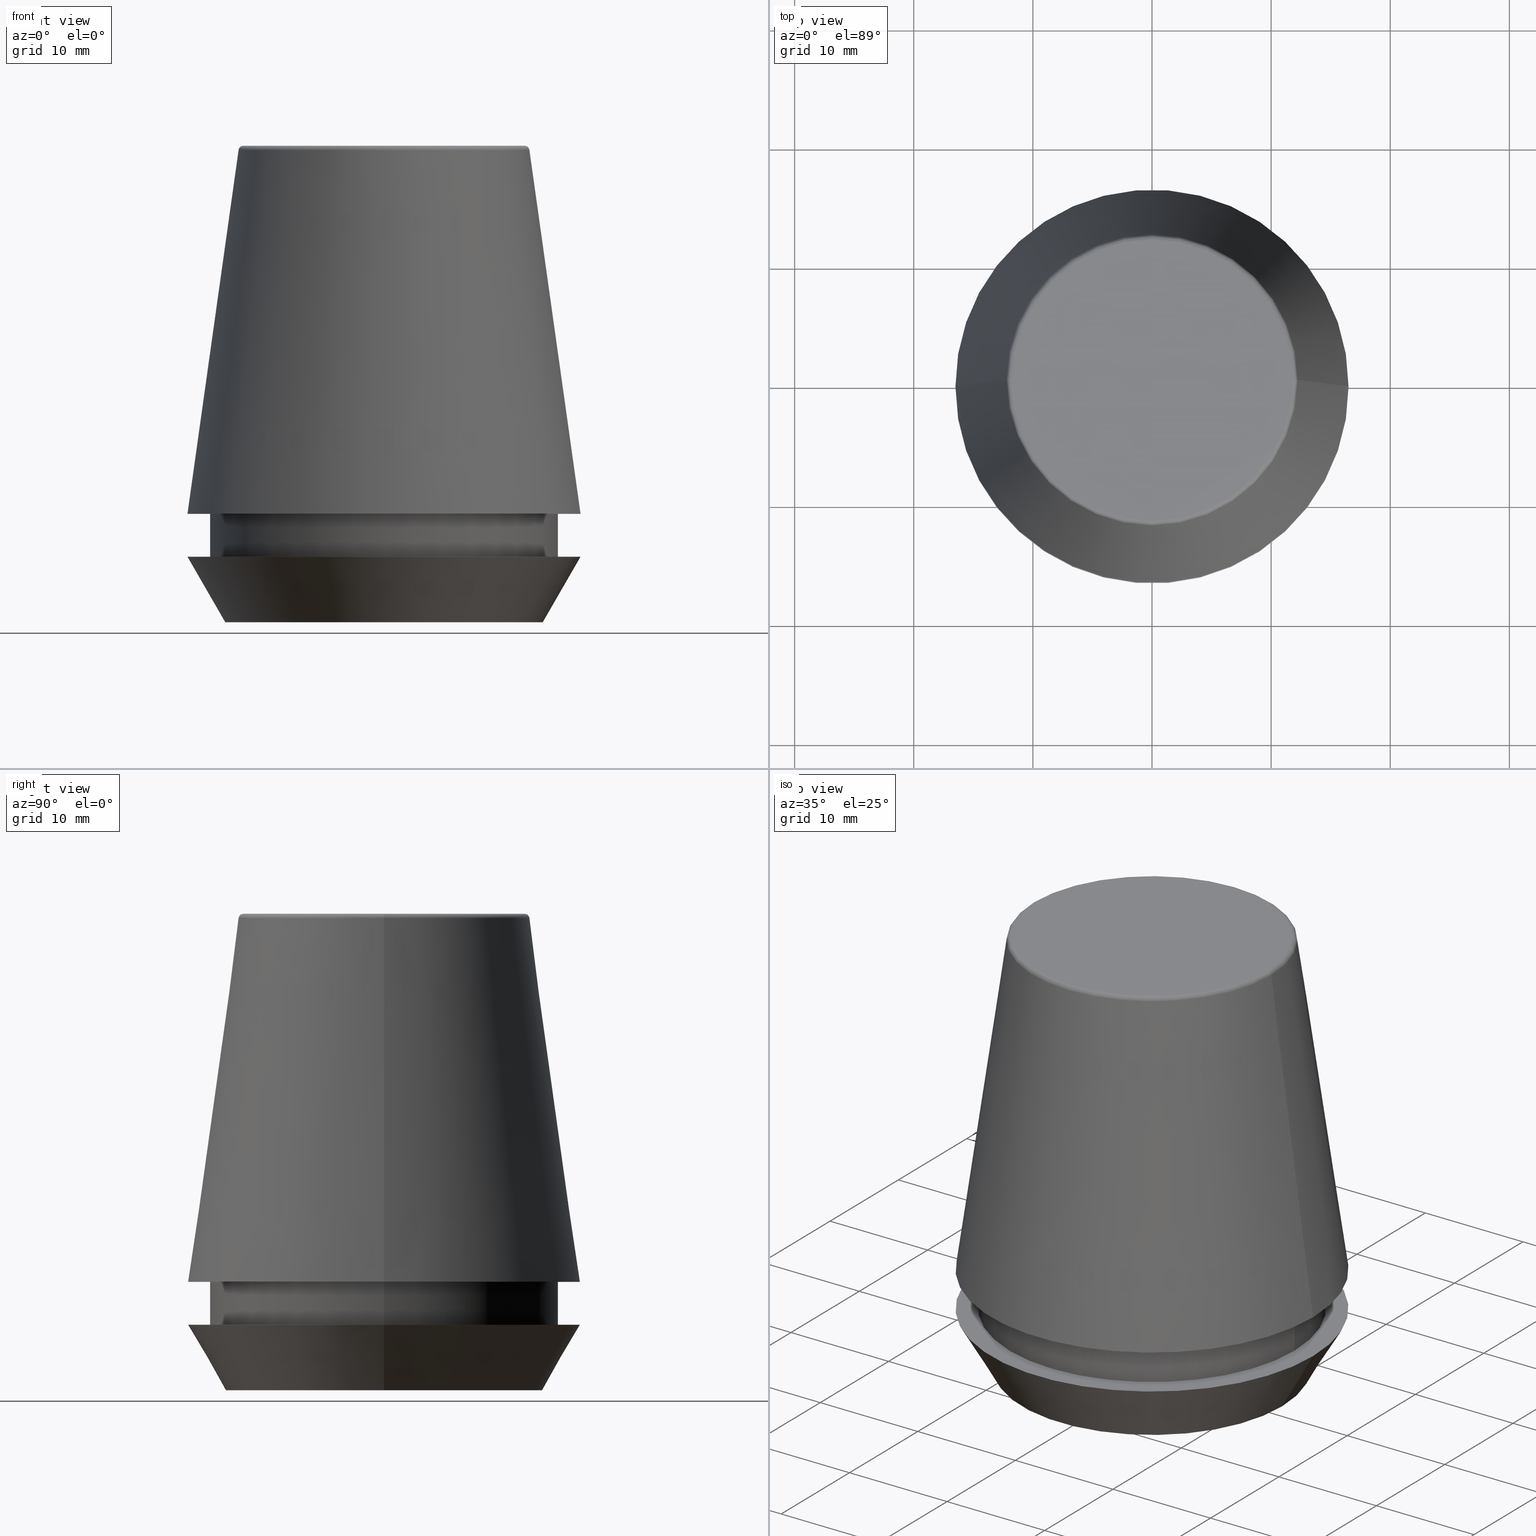
[diagram: canonical four-view strip — front | top / right | iso, engineering-drawing reading convention]
A machine part, canonical four-view strip (front | top / right | iso — engineering-drawing reading convention). The complete STEP part file that produces these views, byte-faithful:
ISO-10303-21;
HEADER;
FILE_DESCRIPTION (( 'STEP AP203' ),
    '1' );
FILE_NAME ('TAP COLLET ER 32G 3.5 X 2.7.STEP',
    '2019-04-09T10:27:22',
    ( '' ),
    ( '' ),
    'SwSTEP 2.0',
    'SolidWorks 2014',
    '' );
FILE_SCHEMA (( 'CONFIG_CONTROL_DESIGN' ));
ENDSEC;

DATA;
#1 = CALENDAR_DATE ( 2019, 9, 4 ) ;
#2 = EDGE_CURVE ( 'NONE', #320, #166, #374, .T. ) ;
#3 = CC_DESIGN_PERSON_AND_ORGANIZATION_ASSIGNMENT ( #308, #69, ( #114 ) ) ;
#4 = CONICAL_SURFACE ( 'NONE', #7, 13.32457351945710200, 0.5235987755982927100 ) ;
#5 = SECURITY_CLASSIFICATION ( '', '', #316 ) ;
#6 = MANIFOLD_SOLID_BREP ( 'Revolve1', #253 ) ;
#7 = AXIS2_PLACEMENT_3D ( 'NONE', #102, #268, #133 ) ;
#8 = APPROVAL_STATUS ( 'not_yet_approved' ) ;
#9 = CARTESIAN_POINT ( 'NONE',  ( -14.60000000000000000, 1.787984326755135800E-015, 101.8074564848000400 ) ) ;
#10 = APPROVAL_STATUS ( 'not_yet_approved' ) ;
#11 = LINE ( 'NONE', #112, #330 ) ;
#12 = AXIS2_PLACEMENT_3D ( 'NONE', #378, #170, #366 ) ;
#13 = ORIENTED_EDGE ( 'NONE', *, *, #372, .T. ) ;
#14 = PERSON_AND_ORGANIZATION ( #358, #129 ) ;
#15 = APPROVAL ( #286, 'UNSPECIFIED' ) ;
#16 = DIRECTION ( 'NONE',  ( 1.000000000000000000, 0.0000000000000000000, 0.0000000000000000000 ) ) ;
#17 = AXIS2_PLACEMENT_3D ( 'NONE', #177, #317, #238 ) ;
#18 = ORIENTED_EDGE ( 'NONE', *, *, #213, .T. ) ;
#19 = APPROVAL ( #8, 'UNSPECIFIED' ) ;
#20 = CONICAL_SURFACE ( 'NONE', #12, 13.32457351945710200, 0.5235987755982927100 ) ;
#21 = ORIENTED_EDGE ( 'NONE', *, *, #2, .T. ) ;
#22 = CARTESIAN_POINT ( 'NONE',  ( 0.0000000000000000000, 0.0000000000000000000, 101.8074564848000400 ) ) ;
#23 = CIRCLE ( 'NONE', #176, 14.60000000000000000 ) ;
#24 = COORDINATED_UNIVERSAL_TIME_OFFSET ( 5, 30, .AHEAD. ) ;
#25 = CARTESIAN_POINT ( 'NONE',  ( 0.0000000000000000000, 0.0000000000000000000, 5.500000000000005300 ) ) ;
#26 = AXIS2_PLACEMENT_3D ( 'NONE', #40, #351, #150 ) ;
#27 = CARTESIAN_POINT ( 'NONE',  ( 0.0000000000000000000, 0.0000000000000000000, 9.099999999999997900 ) ) ;
#28 = VERTEX_POINT ( 'NONE', #361 ) ;
#29 = DIRECTION ( 'NONE',  ( 1.000000000000000000, 0.0000000000000000000, 0.0000000000000000000 ) ) ;
#30 = CARTESIAN_POINT ( 'NONE',  ( 14.60000000000000000, 0.0000000000000000000, 101.8074564848000400 ) ) ;
#31 = DIRECTION ( 'NONE',  ( -0.0000000000000000000, -0.0000000000000000000, 1.000000000000000000 ) ) ;
#32 = AXIS2_PLACEMENT_3D ( 'NONE', #152, #172, #191 ) ;
#33 = DIRECTION ( 'NONE',  ( 1.000000000000000000, 0.0000000000000000000, 0.0000000000000000000 ) ) ;
#34 = EDGE_LOOP ( 'NONE', ( #345, #123, #107, #100 ) ) ;
#35 = EDGE_LOOP ( 'NONE', ( #90, #239, #206, #336 ) ) ;
#36 = CONICAL_SURFACE ( 'NONE', #243, 16.50032537154048700, 0.1396263401595395900 ) ;
#37 = LOCAL_TIME ( 15, 57, 22.00000000000000000, #108 ) ;
#38 = AXIS2_PLACEMENT_3D ( 'NONE', #234, #56, #113 ) ;
#39 = AXIS2_PLACEMENT_3D ( 'NONE', #179, #31, #127 ) ;
#40 = CARTESIAN_POINT ( 'NONE',  ( 0.0000000000000000000, 16.50000000000000000, 5.500000000000002700 ) ) ;
#41 = PERSON_AND_ORGANIZATION_ROLE ( 'creator' ) ;
#42 = DIRECTION ( 'NONE',  ( 1.000000000000000000, 0.0000000000000000000, 0.0000000000000000000 ) ) ;
#43 = TOROIDAL_SURFACE ( 'NONE', #382, 11.80989888411031400, 0.4000000000000026900 ) ;
#44 = CALENDAR_DATE ( 2019, 9, 4 ) ;
#45 = EDGE_CURVE ( 'NONE', #327, #86, #81, .T. ) ;
#46 = CARTESIAN_POINT ( 'NONE',  ( 0.0000000000000000000, 11.80989888411031400, 40.00000000000000700 ) ) ;
#47 = AXIS2_PLACEMENT_3D ( 'NONE', #311, #137, #229 ) ;
#48 = ORIENTED_EDGE ( 'NONE', *, *, #246, .F. ) ;
#49 = AXIS2_PLACEMENT_3D ( 'NONE', #287, #141, #16 ) ;
#50 = CARTESIAN_POINT ( 'NONE',  ( -16.50032537154048700, 0.0000000000000000000, 9.099999999999997900 ) ) ;
#51 = ADVANCED_FACE ( 'NONE', ( #92 ), #4, .T. ) ;
#52 = DATE_AND_TIME ( #128, #207 ) ;
#53 = PERSON_AND_ORGANIZATION ( #358, #129 ) ;
#54 = EDGE_LOOP ( 'NONE', ( #72, #263, #305, #306 ) ) ;
#55 = DIRECTION ( 'NONE',  ( -0.0000000000000000000, -0.0000000000000000000, 1.000000000000000000 ) ) ;
#56 = DIRECTION ( 'NONE',  ( -0.0000000000000000000, -0.0000000000000000000, 1.000000000000000000 ) ) ;
#57 = AXIS2_PLACEMENT_3D ( 'NONE', #46, #236, #58 ) ;
#58 = DIRECTION ( 'NONE',  ( -1.000000000000000000, 0.0000000000000000000, -0.0000000000000000000 ) ) ;
#59 = AXIS2_PLACEMENT_3D ( 'NONE', #237, #222, #297 ) ;
#60 = VERTEX_POINT ( 'NONE', #83 ) ;
#61 = ORIENTED_EDGE ( 'NONE', *, *, #338, .F. ) ;
#62 = DESIGN_CONTEXT ( 'detailed design', #334, 'design' ) ;
#63 = AXIS2_PLACEMENT_3D ( 'NONE', #94, #364, #106 ) ;
#64 = DIRECTION ( 'NONE',  ( -0.0000000000000000000, -0.0000000000000000000, 1.000000000000000000 ) ) ;
#65 = AXIS2_PLACEMENT_3D ( 'NONE', #298, #148, #284 ) ;
#66 = CARTESIAN_POINT ( 'NONE',  ( -11.80989888411031400, 1.446295486667959300E-015, 39.60000000000000100 ) ) ;
#67 = VECTOR ( 'NONE', #381, 1000.000000000000000 ) ;
#68 = AXIS2_PLACEMENT_3D ( 'NONE', #259, #151, #87 ) ;
#69 = PERSON_AND_ORGANIZATION_ROLE ( 'design_supplier' ) ;
#70 = FACE_OUTER_BOUND ( 'NONE', #278, .T. ) ;
#71 = CARTESIAN_POINT ( 'NONE',  ( 0.0000000000000000000, 0.0000000000000000000, 40.00000000000000700 ) ) ;
#72 = ORIENTED_EDGE ( 'NONE', *, *, #221, .F. ) ;
#73 = CIRCLE ( 'NONE', #147, 14.60000000000000000 ) ;
#74 = COORDINATED_UNIVERSAL_TIME_OFFSET ( 5, 30, .AHEAD. ) ;
#75 = EDGE_CURVE ( 'NONE', #247, #60, #217, .T. ) ;
#76 = CARTESIAN_POINT ( 'NONE',  ( 0.0000000000000000000, 16.50032537154048700, 9.099999999999999600 ) ) ;
#77 = ADVANCED_FACE ( 'NONE', ( #252 ), #318, .T. ) ;
#78 = EDGE_CURVE ( 'NONE', #247, #28, #149, .T. ) ;
#79 = CIRCLE ( 'NONE', #17, 0.4000000000000045200 ) ;
#80 = ADVANCED_FACE ( 'NONE', ( #380 ), #20, .T. ) ;
#81 = CIRCLE ( 'NONE', #32, 11.80989888411031400 ) ;
#82 = LOCAL_TIME ( 15, 57, 22.00000000000000000, #158 ) ;
#83 = CARTESIAN_POINT ( 'NONE',  ( 14.60000000000000000, 0.0000000000000000000, 9.099999999999997900 ) ) ;
#84 = PLANE ( 'NONE',  #26 ) ;
#85 = DIRECTION ( 'NONE',  ( -0.0000000000000000000, -0.0000000000000000000, 1.000000000000000000 ) ) ;
#86 = VERTEX_POINT ( 'NONE', #89 ) ;
#87 = DIRECTION ( 'NONE',  ( 1.000000000000000000, 0.0000000000000000000, 0.0000000000000000000 ) ) ;
#88 = ADVANCED_FACE ( 'NONE', ( #235 ), #187, .T. ) ;
#89 = CARTESIAN_POINT ( 'NONE',  ( 11.80989888411031400, 0.0000000000000000000, 40.00000000000000700 ) ) ;
#90 = ORIENTED_EDGE ( 'NONE', *, *, #261, .F. ) ;
#91 = AXIS2_PLACEMENT_3D ( 'NONE', #25, #231, #371 ) ;
#92 = FACE_OUTER_BOUND ( 'NONE', #35, .T. ) ;
#93 = ORIENTED_EDGE ( 'NONE', *, *, #246, .T. ) ;
#94 = CARTESIAN_POINT ( 'NONE',  ( 0.0000000000000000000, 0.0000000000000000000, 101.8074564848000400 ) ) ;
#95 = APPROVAL_DATE_TIME ( #167, #15 ) ;
#96 = CIRCLE ( 'NONE', #91, 16.50000000000000000 ) ;
#97 = EDGE_CURVE ( 'NONE', #161, #277, #250, .T. ) ;
#98 = FACE_OUTER_BOUND ( 'NONE', #184, .T. ) ;
#99 = DATE_TIME_ROLE ( 'creation_date' ) ;
#100 = ORIENTED_EDGE ( 'NONE', *, *, #75, .F. ) ;
#101 = APPROVAL_PERSON_ORGANIZATION ( #182, #15, #118 ) ;
#102 = CARTESIAN_POINT ( 'NONE',  ( 0.0000000000000000000, 0.0000000000000000000, 0.0000000000000000000 ) ) ;
#103 = DIRECTION ( 'NONE',  ( 1.000000000000000000, 0.0000000000000000000, 0.0000000000000000000 ) ) ;
#104 = EDGE_LOOP ( 'NONE', ( #281, #119 ) ) ;
#105 = ADVANCED_FACE ( 'NONE', ( #285 ), #245, .F. ) ;
#106 = DIRECTION ( 'NONE',  ( 1.000000000000000000, 0.0000000000000000000, 0.0000000000000000000 ) ) ;
#107 = ORIENTED_EDGE ( 'NONE', *, *, #213, .F. ) ;
#108 = COORDINATED_UNIVERSAL_TIME_OFFSET ( 5, 30, .AHEAD. ) ;
#109 = CIRCLE ( 'NONE', #65, 13.32457351945710200 ) ;
#110 = PLANE ( 'NONE',  #159 ) ;
#111 = CARTESIAN_POINT ( 'NONE',  ( 0.0000000000000000000, 0.0000000000000000000, 0.0000000000000000000 ) ) ;
#112 = CARTESIAN_POINT ( 'NONE',  ( -13.32457351945710200, 1.631789631060672300E-015, 0.0000000000000000000 ) ) ;
#113 = DIRECTION ( 'NONE',  ( 1.000000000000000000, 0.0000000000000000000, 0.0000000000000000000 ) ) ;
#114 = PRODUCT_DEFINITION_FORMATION_WITH_SPECIFIED_SOURCE ( 'ANY', '', #211, .NOT_KNOWN. ) ;
#115 =( NAMED_UNIT ( * ) SI_UNIT ( $, .STERADIAN. ) SOLID_ANGLE_UNIT ( ) );
#116 = VECTOR ( 'NONE', #265, 1000.000000000000000 ) ;
#117 = LOCAL_TIME ( 15, 57, 22.00000000000000000, #197 ) ;
#118 = APPROVAL_ROLE ( '' ) ;
#119 = ORIENTED_EDGE ( 'NONE', *, *, #168, .F. ) ;
#120 = AXIS2_PLACEMENT_3D ( 'NONE', #71, #299, #42 ) ;
#121 = ORIENTED_EDGE ( 'NONE', *, *, #45, .T. ) ;
#122 = ORIENTED_EDGE ( 'NONE', *, *, #45, .F. ) ;
#123 = ORIENTED_EDGE ( 'NONE', *, *, #221, .T. ) ;
#124 = UNCERTAINTY_MEASURE_WITH_UNIT (LENGTH_MEASURE( 1.000000000000000100E-005 ), #190, 'distance_accuracy_value', 'NONE');
#125 = EDGE_CURVE ( 'NONE', #267, #161, #350, .T. ) ;
#126 = FACE_OUTER_BOUND ( 'NONE', #156, .T. ) ;
#127 = DIRECTION ( 'NONE',  ( 1.000000000000000000, 0.0000000000000000000, 0.0000000000000000000 ) ) ;
#128 = CALENDAR_DATE ( 2019, 9, 4 ) ;
#129 = ORGANIZATION ( 'UNSPECIFIED', 'UNSPECIFIED', '' ) ;
#130 = CARTESIAN_POINT ( 'NONE',  ( 0.0000000000000000000, 0.0000000000000000000, 5.500000000000005300 ) ) ;
#131 = ADVANCED_BREP_SHAPE_REPRESENTATION ( 'TAP COLLET ER 32G 3.5 X 2.7', ( #6, #291 ), #337 ) ;
#132 = ADVANCED_FACE ( 'NONE', ( #339 ), #215, .F. ) ;
#133 = DIRECTION ( 'NONE',  ( 1.000000000000000000, 0.0000000000000000000, 0.0000000000000000000 ) ) ;
#134 = CC_DESIGN_APPROVAL ( #19, ( #219 ) ) ;
#135 = ORIENTED_EDGE ( 'NONE', *, *, #313, .F. ) ;
#136 = CARTESIAN_POINT ( 'NONE',  ( 13.32457351945710200, 0.0000000000000000000, 0.0000000000000000000 ) ) ;
#137 = DIRECTION ( 'NONE',  ( -0.0000000000000000000, -0.0000000000000000000, 1.000000000000000000 ) ) ;
#138 = DIRECTION ( 'NONE',  ( -0.0000000000000000000, -0.0000000000000000000, 1.000000000000000000 ) ) ;
#139 = LINE ( 'NONE', #154, #203 ) ;
#140 = CARTESIAN_POINT ( 'NONE',  ( 0.0000000000000000000, 0.0000000000000000000, 39.65566924038402900 ) ) ;
#141 = DIRECTION ( 'NONE',  ( -0.0000000000000000000, -0.0000000000000000000, 1.000000000000000000 ) ) ;
#142 = ORIENTED_EDGE ( 'NONE', *, *, #155, .T. ) ;
#143 = ORIENTED_EDGE ( 'NONE', *, *, #375, .F. ) ;
#144 = APPROVAL_PERSON_ORGANIZATION ( #232, #355, #276 ) ;
#145 = AXIS2_PLACEMENT_3D ( 'NONE', #66, #216, #248 ) ;
#146 = VECTOR ( 'NONE', #282, 999.9999999999998900 ) ;
#147 = AXIS2_PLACEMENT_3D ( 'NONE', #220, #64, #359 ) ;
#148 = DIRECTION ( 'NONE',  ( -0.0000000000000000000, -0.0000000000000000000, 1.000000000000000000 ) ) ;
#149 = CIRCLE ( 'NONE', #183, 14.60000000000000000 ) ;
#150 = DIRECTION ( 'NONE',  ( -1.000000000000000000, 0.0000000000000000000, -0.0000000000000000000 ) ) ;
#151 = DIRECTION ( 'NONE',  ( -0.0000000000000000000, -0.0000000000000000000, 1.000000000000000000 ) ) ;
#152 = CARTESIAN_POINT ( 'NONE',  ( 0.0000000000000000000, 0.0000000000000000000, 40.00000000000000700 ) ) ;
#153 = EDGE_LOOP ( 'NONE', ( #171, #199, #173, #135 ) ) ;
#154 = CARTESIAN_POINT ( 'NONE',  ( 16.50032537154048700, 2.020707065114692300E-015, 9.099999999999997900 ) ) ;
#155 = EDGE_CURVE ( 'NONE', #373, #289, #266, .T. ) ;
#156 = EDGE_LOOP ( 'NONE', ( #200, #326 ) ) ;
#157 = DIRECTION ( 'NONE',  ( -0.1391731009600586900, 0.0000000000000000000, -0.9902680687415712500 ) ) ;
#158 = COORDINATED_UNIVERSAL_TIME_OFFSET ( 5, 30, .AHEAD. ) ;
#159 = AXIS2_PLACEMENT_3D ( 'NONE', #76, #218, #162 ) ;
#160 = CARTESIAN_POINT ( 'NONE',  ( 0.0000000000000000000, 0.0000000000000000000, 39.60000000000000100 ) ) ;
#161 = VERTEX_POINT ( 'NONE', #136 ) ;
#162 = DIRECTION ( 'NONE',  ( 1.000000000000000000, 0.0000000000000000000, 0.0000000000000000000 ) ) ;
#163 = CIRCLE ( 'NONE', #145, 0.4000000000000028000 ) ;
#164 = EDGE_LOOP ( 'NONE', ( #93, #228, #61, #376 ) ) ;
#165 = ORIENTED_EDGE ( 'NONE', *, *, #125, .F. ) ;
#166 = VERTEX_POINT ( 'NONE', #369 ) ;
#167 = DATE_AND_TIME ( #255, #321 ) ;
#168 = EDGE_CURVE ( 'NONE', #28, #247, #196, .T. ) ;
#169 = AXIS2_PLACEMENT_3D ( 'NONE', #140, #348, #335 ) ;
#170 = DIRECTION ( 'NONE',  ( -0.0000000000000000000, -0.0000000000000000000, 1.000000000000000000 ) ) ;
#171 = ORIENTED_EDGE ( 'NONE', *, *, #341, .T. ) ;
#172 = DIRECTION ( 'NONE',  ( -0.0000000000000000000, -0.0000000000000000000, 1.000000000000000000 ) ) ;
#173 = ORIENTED_EDGE ( 'NONE', *, *, #363, .F. ) ;
#174 = DIRECTION ( 'NONE',  ( -1.000000000000000000, 0.0000000000000000000, 0.0000000000000000000 ) ) ;
#175 = DIRECTION ( 'NONE',  ( 0.0000000000000000000, 0.0000000000000000000, -1.000000000000000000 ) ) ;
#176 = AXIS2_PLACEMENT_3D ( 'NONE', #244, #344, #29 ) ;
#177 = CARTESIAN_POINT ( 'NONE',  ( 11.80989888411031400, 0.0000000000000000000, 39.60000000000000100 ) ) ;
#178 = EDGE_LOOP ( 'NONE', ( #340, #121 ) ) ;
#179 = CARTESIAN_POINT ( 'NONE',  ( 0.0000000000000000000, 0.0000000000000000000, 9.099999999999997900 ) ) ;
#180 = CIRCLE ( 'NONE', #195, 16.50000000000000000 ) ;
#181 = PRODUCT_DEFINITION_SHAPE ( 'NONE', 'NONE',  #219 ) ;
#182 = PERSON_AND_ORGANIZATION ( #358, #129 ) ;
#183 = AXIS2_PLACEMENT_3D ( 'NONE', #202, #138, #347 ) ;
#184 = EDGE_LOOP ( 'NONE', ( #356, #240 ) ) ;
#185 = CARTESIAN_POINT ( 'NONE',  ( -14.60000000000000000, 1.787984326755135800E-015, 9.099999999999997900 ) ) ;
#186 = CC_DESIGN_DATE_AND_TIME_ASSIGNMENT ( #260, #99, ( #219 ) ) ;
#187 = CYLINDRICAL_SURFACE ( 'NONE', #63, 14.60000000000000000 ) ;
#188 = CARTESIAN_POINT ( 'NONE',  ( -13.32457351945710200, 1.826228424826902600E-015, 0.0000000000000000000 ) ) ;
#189 = PERSON_AND_ORGANIZATION ( #358, #129 ) ;
#190 =( LENGTH_UNIT ( ) NAMED_UNIT ( * ) SI_UNIT ( .MILLI., .METRE. ) );
#191 = DIRECTION ( 'NONE',  ( 1.000000000000000000, 0.0000000000000000000, 0.0000000000000000000 ) ) ;
#192 = DIRECTION ( 'NONE',  ( 1.000000000000000000, 0.0000000000000000000, 0.0000000000000000000 ) ) ;
#193 = EDGE_LOOP ( 'NONE', ( #48, #165 ) ) ;
#194 = ADVANCED_FACE ( 'NONE', ( #205 ), #43, .T. ) ;
#195 = AXIS2_PLACEMENT_3D ( 'NONE', #130, #55, #271 ) ;
#196 = CIRCLE ( 'NONE', #38, 14.60000000000000000 ) ;
#197 = COORDINATED_UNIVERSAL_TIME_OFFSET ( 5, 30, .AHEAD. ) ;
#198 = DIRECTION ( 'NONE',  ( 0.0000000000000000000, 0.0000000000000000000, -1.000000000000000000 ) ) ;
#199 = ORIENTED_EDGE ( 'NONE', *, *, #375, .T. ) ;
#200 = ORIENTED_EDGE ( 'NONE', *, *, #338, .T. ) ;
#201 = APPLICATION_PROTOCOL_DEFINITION ( 'international standard', 'config_control_design', 1994, #334 ) ;
#202 = CARTESIAN_POINT ( 'NONE',  ( 0.0000000000000000000, 0.0000000000000000000, 5.500000000000005300 ) ) ;
#203 = VECTOR ( 'NONE', #274, 1000.000000000000000 ) ;
#204 = CARTESIAN_POINT ( 'NONE',  ( 14.60000000000000000, 0.0000000000000000000, 5.500000000000005300 ) ) ;
#205 = FACE_OUTER_BOUND ( 'NONE', #153, .T. ) ;
#206 = ORIENTED_EDGE ( 'NONE', *, *, #97, .T. ) ;
#207 = LOCAL_TIME ( 15, 57, 22.00000000000000000, #74 ) ;
#208 = CARTESIAN_POINT ( 'NONE',  ( -11.80989888411031400, 1.470550059081603400E-015, 40.00000000000000700 ) ) ;
#209 = SHAPE_DEFINITION_REPRESENTATION ( #181, #131 ) ;
#210 = ORIENTED_EDGE ( 'NONE', *, *, #370, .F. ) ;
#211 = PRODUCT ( 'TAP COLLET ER 32G 3.5 X 2.7', 'TAP COLLET ER 32G 3.5 X 2.7', '', ( #223 ) ) ;
#212 = LINE ( 'NONE', #50, #367 ) ;
#213 = EDGE_CURVE ( 'NONE', #60, #272, #23, .T. ) ;
#214 = CC_DESIGN_PERSON_AND_ORGANIZATION_ASSIGNMENT ( #14, #279, ( #114 ) ) ;
#215 = PLANE ( 'NONE',  #57 ) ;
#216 = DIRECTION ( 'NONE',  ( 1.224646799147353200E-016, 1.000000000000000000, 0.0000000000000000000 ) ) ;
#217 = LINE ( 'NONE', #30, #67 ) ;
#218 = DIRECTION ( 'NONE',  ( 0.0000000000000000000, -0.0000000000000000000, 1.000000000000000000 ) ) ;
#219 = PRODUCT_DEFINITION ( 'UNKNOWN', '', #114, #62 ) ;
#220 = CARTESIAN_POINT ( 'NONE',  ( 0.0000000000000000000, 0.0000000000000000000, 9.099999999999997900 ) ) ;
#221 = EDGE_CURVE ( 'NONE', #28, #272, #269, .T. ) ;
#222 = DIRECTION ( 'NONE',  ( -0.0000000000000000000, -0.0000000000000000000, 1.000000000000000000 ) ) ;
#223 = MECHANICAL_CONTEXT ( 'NONE', #256, 'mechanical' ) ;
#224 = AXIS2_PLACEMENT_3D ( 'NONE', #242, #175, #275 ) ;
#225 = ADVANCED_FACE ( 'NONE', ( #70 ), #36, .T. ) ;
#226 = ADVANCED_FACE ( 'NONE', ( #290 ), #385, .T. ) ;
#227 = FACE_BOUND ( 'NONE', #104, .T. ) ;
#228 = ORIENTED_EDGE ( 'NONE', *, *, #261, .T. ) ;
#229 = DIRECTION ( 'NONE',  ( 1.000000000000000000, 0.0000000000000000000, 0.0000000000000000000 ) ) ;
#230 = CIRCLE ( 'NONE', #39, 16.50032537154048700 ) ;
#231 = DIRECTION ( 'NONE',  ( -0.0000000000000000000, -0.0000000000000000000, 1.000000000000000000 ) ) ;
#232 = PERSON_AND_ORGANIZATION ( #358, #129 ) ;
#233 = DIRECTION ( 'NONE',  ( 0.0000000000000000000, 0.0000000000000000000, 1.000000000000000000 ) ) ;
#234 = CARTESIAN_POINT ( 'NONE',  ( 0.0000000000000000000, 0.0000000000000000000, 5.500000000000005300 ) ) ;
#235 = FACE_OUTER_BOUND ( 'NONE', #54, .T. ) ;
#236 = DIRECTION ( 'NONE',  ( 0.0000000000000000000, 0.0000000000000000000, -1.000000000000000000 ) ) ;
#237 = CARTESIAN_POINT ( 'NONE',  ( 0.0000000000000000000, 0.0000000000000000000, 39.60000000000000100 ) ) ;
#238 = DIRECTION ( 'NONE',  ( 0.0000000000000000000, 0.0000000000000000000, -1.000000000000000000 ) ) ;
#239 = ORIENTED_EDGE ( 'NONE', *, *, #125, .T. ) ;
#240 = ORIENTED_EDGE ( 'NONE', *, *, #2, .F. ) ;
#241 = PERSON_AND_ORGANIZATION ( #358, #129 ) ;
#242 = CARTESIAN_POINT ( 'NONE',  ( 0.0000000000000000000, 0.0000000000000000000, 9.099999999999997900 ) ) ;
#243 = AXIS2_PLACEMENT_3D ( 'NONE', #27, #198, #174 ) ;
#244 = CARTESIAN_POINT ( 'NONE',  ( 0.0000000000000000000, 0.0000000000000000000, 9.099999999999997900 ) ) ;
#245 = PLANE ( 'NONE',  #349 ) ;
#246 = EDGE_CURVE ( 'NONE', #161, #267, #109, .T. ) ;
#247 = VERTEX_POINT ( 'NONE', #204 ) ;
#248 = DIRECTION ( 'NONE',  ( -1.000000000000000000, 1.224646799147352500E-016, 0.0000000000000000000 ) ) ;
#249 = PERSON_AND_ORGANIZATION_ROLE ( 'classification_officer' ) ;
#250 = LINE ( 'NONE', #292, #146 ) ;
#251 = ORIENTED_EDGE ( 'NONE', *, *, #341, .F. ) ;
#252 = FACE_OUTER_BOUND ( 'NONE', #300, .T. ) ;
#253 = CLOSED_SHELL ( 'NONE', ( #194, #225, #226, #80, #132, #105, #51, #331, #88, #365, #77, #312 ) ) ;
#254 = CARTESIAN_POINT ( 'NONE',  ( -12.20600611160694300, 0.0000000000000000000, 39.65566924038402900 ) ) ;
#255 = CALENDAR_DATE ( 2019, 9, 4 ) ;
#256 = APPLICATION_CONTEXT ( 'configuration controlled 3d designs of mechanical parts and assemblies' ) ;
#257 = CARTESIAN_POINT ( 'NONE',  ( 0.0000000000000000000, 0.0000000000000000000, 0.0000000000000000000 ) ) ;
#258 = ORIENTED_EDGE ( 'NONE', *, *, #370, .T. ) ;
#259 = CARTESIAN_POINT ( 'NONE',  ( 0.0000000000000000000, 0.0000000000000000000, 9.099999999999997900 ) ) ;
#260 = DATE_AND_TIME ( #329, #37 ) ;
#261 = EDGE_CURVE ( 'NONE', #267, #387, #11, .T. ) ;
#262 = DIRECTION ( 'NONE',  ( 1.000000000000000000, 0.0000000000000000000, 0.0000000000000000000 ) ) ;
#263 = ORIENTED_EDGE ( 'NONE', *, *, #168, .T. ) ;
#264 = CIRCLE ( 'NONE', #49, 12.20600611160694300 ) ;
#265 = DIRECTION ( 'NONE',  ( -0.0000000000000000000, -0.0000000000000000000, 1.000000000000000000 ) ) ;
#266 = CIRCLE ( 'NONE', #169, 12.20600611160694300 ) ;
#267 = VERTEX_POINT ( 'NONE', #188 ) ;
#268 = DIRECTION ( 'NONE',  ( -0.0000000000000000000, -0.0000000000000000000, 1.000000000000000000 ) ) ;
#269 = LINE ( 'NONE', #9, #116 ) ;
#270 = APPROVAL_DATE_TIME ( #343, #19 ) ;
#271 = DIRECTION ( 'NONE',  ( 1.000000000000000000, 0.0000000000000000000, 0.0000000000000000000 ) ) ;
#272 = VERTEX_POINT ( 'NONE', #185 ) ;
#273 = APPROVAL_PERSON_ORGANIZATION ( #354, #19, #288 ) ;
#274 = DIRECTION ( 'NONE',  ( 0.1391731009600586900, 1.704378926181473100E-017, -0.9902680687415712500 ) ) ;
#275 = DIRECTION ( 'NONE',  ( -1.000000000000000000, 0.0000000000000000000, 0.0000000000000000000 ) ) ;
#276 = APPROVAL_ROLE ( '' ) ;
#277 = VERTEX_POINT ( 'NONE', #333 ) ;
#278 = EDGE_LOOP ( 'NONE', ( #251, #258, #21, #352 ) ) ;
#279 = PERSON_AND_ORGANIZATION_ROLE ( 'creator' ) ;
#280 = EDGE_CURVE ( 'NONE', #373, #166, #212, .T. ) ;
#281 = ORIENTED_EDGE ( 'NONE', *, *, #78, .F. ) ;
#282 = DIRECTION ( 'NONE',  ( 0.4999999999999947300, 0.0000000000000000000, 0.8660254037844418200 ) ) ;
#283 = FACE_OUTER_BOUND ( 'NONE', #362, .T. ) ;
#284 = DIRECTION ( 'NONE',  ( 1.000000000000000000, 0.0000000000000000000, 0.0000000000000000000 ) ) ;
#285 = FACE_OUTER_BOUND ( 'NONE', #193, .T. ) ;
#286 = APPROVAL_STATUS ( 'not_yet_approved' ) ;
#287 = CARTESIAN_POINT ( 'NONE',  ( 0.0000000000000000000, 0.0000000000000000000, 39.65566924038402900 ) ) ;
#288 = APPROVAL_ROLE ( '' ) ;
#289 = VERTEX_POINT ( 'NONE', #315 ) ;
#290 = FACE_OUTER_BOUND ( 'NONE', #34, .T. ) ;
#291 = AXIS2_PLACEMENT_3D ( 'NONE', #111, #233, #103 ) ;
#292 = CARTESIAN_POINT ( 'NONE',  ( 13.32457351945710200, 0.0000000000000000000, 0.0000000000000000000 ) ) ;
#293 = CC_DESIGN_APPROVAL ( #15, ( #114 ) ) ;
#294 = CC_DESIGN_SECURITY_CLASSIFICATION ( #5, ( #114 ) ) ;
#295 = PRODUCT_RELATED_PRODUCT_CATEGORY ( 'detail', '', ( #211 ) ) ;
#296 = FACE_BOUND ( 'NONE', #328, .T. ) ;
#297 = DIRECTION ( 'NONE',  ( 1.000000000000000000, 0.0000000000000000000, 0.0000000000000000000 ) ) ;
#298 = CARTESIAN_POINT ( 'NONE',  ( 0.0000000000000000000, 0.0000000000000000000, 0.0000000000000000000 ) ) ;
#299 = DIRECTION ( 'NONE',  ( -0.0000000000000000000, -0.0000000000000000000, 1.000000000000000000 ) ) ;
#300 = EDGE_LOOP ( 'NONE', ( #210, #307, #319, #323 ) ) ;
#301 = ORIENTED_EDGE ( 'NONE', *, *, #313, .T. ) ;
#302 = DATE_AND_TIME ( #1, #82 ) ;
#303 =( NAMED_UNIT ( * ) PLANE_ANGLE_UNIT ( ) SI_UNIT ( $, .RADIAN. ) );
#304 = PERSON_AND_ORGANIZATION_ROLE ( 'design_owner' ) ;
#305 = ORIENTED_EDGE ( 'NONE', *, *, #75, .T. ) ;
#306 = ORIENTED_EDGE ( 'NONE', *, *, #372, .F. ) ;
#307 = ORIENTED_EDGE ( 'NONE', *, *, #155, .F. ) ;
#308 = PERSON_AND_ORGANIZATION ( #358, #129 ) ;
#309 = EDGE_CURVE ( 'NONE', #166, #320, #230, .T. ) ;
#310 = CIRCLE ( 'NONE', #120, 11.80989888411031400 ) ;
#311 = CARTESIAN_POINT ( 'NONE',  ( 0.0000000000000000000, 0.0000000000000000000, 0.0000000000000000000 ) ) ;
#312 = ADVANCED_FACE ( 'NONE', ( #283 ), #357, .T. ) ;
#313 = EDGE_CURVE ( 'NONE', #289, #86, #79, .T. ) ;
#314 = DIRECTION ( 'NONE',  ( -0.4999999999999947300, 6.123233995736700700E-017, 0.8660254037844418200 ) ) ;
#315 = CARTESIAN_POINT ( 'NONE',  ( 12.20600611160694300, 1.757755848304969800E-015, 39.65566924038402900 ) ) ;
#316 = SECURITY_CLASSIFICATION_LEVEL ( 'unclassified' ) ;
#317 = DIRECTION ( 'NONE',  ( 0.0000000000000000000, -1.000000000000000000, 0.0000000000000000000 ) ) ;
#318 = CONICAL_SURFACE ( 'NONE', #224, 16.50032537154048700, 0.1396263401595395900 ) ;
#319 = ORIENTED_EDGE ( 'NONE', *, *, #280, .T. ) ;
#320 = VERTEX_POINT ( 'NONE', #386 ) ;
#321 = LOCAL_TIME ( 15, 57, 22.00000000000000000, #24 ) ;
#322 = CC_DESIGN_PERSON_AND_ORGANIZATION_ASSIGNMENT ( #189, #41, ( #219 ) ) ;
#323 = ORIENTED_EDGE ( 'NONE', *, *, #309, .T. ) ;
#324 = DATE_TIME_ROLE ( 'classification_date' ) ;
#325 = APPLICATION_PROTOCOL_DEFINITION ( 'international standard', 'config_control_design', 1994, #256 ) ;
#326 = ORIENTED_EDGE ( 'NONE', *, *, #332, .T. ) ;
#327 = VERTEX_POINT ( 'NONE', #208 ) ;
#328 = EDGE_LOOP ( 'NONE', ( #18, #13 ) ) ;
#329 = CALENDAR_DATE ( 2019, 9, 4 ) ;
#330 = VECTOR ( 'NONE', #314, 999.9999999999998900 ) ;
#331 = ADVANCED_FACE ( 'NONE', ( #227, #126 ), #84, .F. ) ;
#332 = EDGE_CURVE ( 'NONE', #387, #277, #96, .T. ) ;
#333 = CARTESIAN_POINT ( 'NONE',  ( 16.50000000000000000, 0.0000000000000000000, 5.500000000000005300 ) ) ;
#334 = APPLICATION_CONTEXT ( 'configuration controlled 3d designs of mechanical parts and assemblies' ) ;
#335 = DIRECTION ( 'NONE',  ( 1.000000000000000000, 0.0000000000000000000, 0.0000000000000000000 ) ) ;
#336 = ORIENTED_EDGE ( 'NONE', *, *, #332, .F. ) ;
#337 =( GEOMETRIC_REPRESENTATION_CONTEXT ( 3 ) GLOBAL_UNCERTAINTY_ASSIGNED_CONTEXT ( ( #124 ) ) GLOBAL_UNIT_ASSIGNED_CONTEXT ( ( #190, #303, #115 ) ) REPRESENTATION_CONTEXT ( 'NONE', 'WORKASPACE' ) );
#338 = EDGE_CURVE ( 'NONE', #277, #387, #180, .T. ) ;
#339 = FACE_OUTER_BOUND ( 'NONE', #178, .T. ) ;
#340 = ORIENTED_EDGE ( 'NONE', *, *, #363, .T. ) ;
#341 = EDGE_CURVE ( 'NONE', #289, #373, #264, .T. ) ;
#342 = DIRECTION ( 'NONE',  ( -0.0000000000000000000, -0.0000000000000000000, 1.000000000000000000 ) ) ;
#343 = DATE_AND_TIME ( #44, #117 ) ;
#344 = DIRECTION ( 'NONE',  ( -0.0000000000000000000, -0.0000000000000000000, 1.000000000000000000 ) ) ;
#345 = ORIENTED_EDGE ( 'NONE', *, *, #78, .T. ) ;
#346 = DIRECTION ( 'NONE',  ( 0.0000000000000000000, -0.0000000000000000000, 1.000000000000000000 ) ) ;
#347 = DIRECTION ( 'NONE',  ( 1.000000000000000000, 0.0000000000000000000, 0.0000000000000000000 ) ) ;
#348 = DIRECTION ( 'NONE',  ( -0.0000000000000000000, -0.0000000000000000000, 1.000000000000000000 ) ) ;
#349 = AXIS2_PLACEMENT_3D ( 'NONE', #257, #346, #192 ) ;
#350 = CIRCLE ( 'NONE', #47, 13.32457351945710200 ) ;
#351 = DIRECTION ( 'NONE',  ( 0.0000000000000000000, 0.0000000000000000000, -1.000000000000000000 ) ) ;
#352 = ORIENTED_EDGE ( 'NONE', *, *, #280, .F. ) ;
#353 = APPROVAL_DATE_TIME ( #52, #355 ) ;
#354 = PERSON_AND_ORGANIZATION ( #358, #129 ) ;
#355 = APPROVAL ( #10, 'UNSPECIFIED' ) ;
#356 = ORIENTED_EDGE ( 'NONE', *, *, #309, .F. ) ;
#357 = TOROIDAL_SURFACE ( 'NONE', #59, 11.80989888411031400, 0.4000000000000026900 ) ;
#358 = PERSON ( 'UNSPECIFIED', 'UNSPECIFIED', 'UNSPECIFIED', ('UNSPECIFIED'), ('UNSPECIFIED'), ('UNSPECIFIED') ) ;
#359 = DIRECTION ( 'NONE',  ( 1.000000000000000000, 0.0000000000000000000, 0.0000000000000000000 ) ) ;
#360 = CC_DESIGN_APPROVAL ( #355, ( #5 ) ) ;
#361 = CARTESIAN_POINT ( 'NONE',  ( -14.60000000000000000, 1.787984326755135800E-015, 5.500000000000005300 ) ) ;
#362 = EDGE_LOOP ( 'NONE', ( #143, #142, #301, #122 ) ) ;
#363 = EDGE_CURVE ( 'NONE', #86, #327, #310, .T. ) ;
#364 = DIRECTION ( 'NONE',  ( -0.0000000000000000000, -0.0000000000000000000, 1.000000000000000000 ) ) ;
#365 = ADVANCED_FACE ( 'NONE', ( #98, #296 ), #110, .F. ) ;
#366 = DIRECTION ( 'NONE',  ( 1.000000000000000000, 0.0000000000000000000, 0.0000000000000000000 ) ) ;
#367 = VECTOR ( 'NONE', #157, 1000.000000000000000 ) ;
#368 = CC_DESIGN_PERSON_AND_ORGANIZATION_ASSIGNMENT ( #53, #304, ( #211 ) ) ;
#369 = CARTESIAN_POINT ( 'NONE',  ( -16.50032537154048700, 0.0000000000000000000, 9.099999999999997900 ) ) ;
#370 = EDGE_CURVE ( 'NONE', #289, #320, #139, .T. ) ;
#371 = DIRECTION ( 'NONE',  ( 1.000000000000000000, 0.0000000000000000000, 0.0000000000000000000 ) ) ;
#372 = EDGE_CURVE ( 'NONE', #272, #60, #73, .T. ) ;
#373 = VERTEX_POINT ( 'NONE', #254 ) ;
#374 = CIRCLE ( 'NONE', #68, 16.50032537154048700 ) ;
#375 = EDGE_CURVE ( 'NONE', #373, #327, #163, .T. ) ;
#376 = ORIENTED_EDGE ( 'NONE', *, *, #97, .F. ) ;
#377 = CC_DESIGN_PERSON_AND_ORGANIZATION_ASSIGNMENT ( #241, #249, ( #5 ) ) ;
#378 = CARTESIAN_POINT ( 'NONE',  ( 0.0000000000000000000, 0.0000000000000000000, 0.0000000000000000000 ) ) ;
#379 = AXIS2_PLACEMENT_3D ( 'NONE', #22, #342, #262 ) ;
#380 = FACE_OUTER_BOUND ( 'NONE', #164, .T. ) ;
#381 = DIRECTION ( 'NONE',  ( -0.0000000000000000000, -0.0000000000000000000, 1.000000000000000000 ) ) ;
#382 = AXIS2_PLACEMENT_3D ( 'NONE', #160, #85, #33 ) ;
#383 = CARTESIAN_POINT ( 'NONE',  ( -16.50000000000000000, 2.020667218593133100E-015, 5.500000000000005300 ) ) ;
#384 = CC_DESIGN_DATE_AND_TIME_ASSIGNMENT ( #302, #324, ( #5 ) ) ;
#385 = CYLINDRICAL_SURFACE ( 'NONE', #379, 14.60000000000000000 ) ;
#386 = CARTESIAN_POINT ( 'NONE',  ( 16.50032537154048700, 2.020707065114692300E-015, 9.099999999999997900 ) ) ;
#387 = VERTEX_POINT ( 'NONE', #383 ) ;
ENDSEC;
END-ISO-10303-21;
